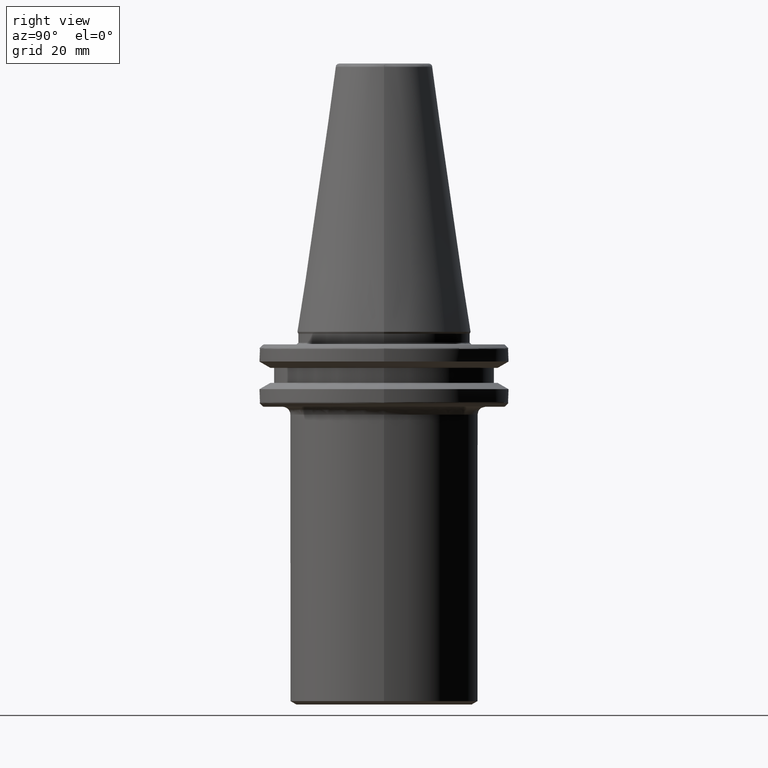
[diagram: clean part render]
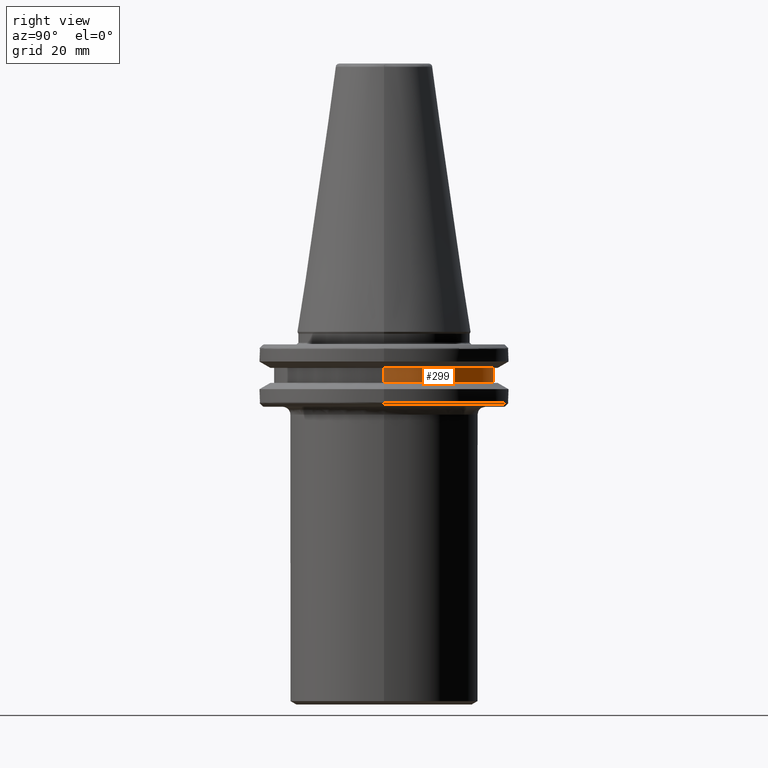
[diagram: same view with one face highlighted and labeled with its STEP entity id]
A machine part, right view. The second image highlights one B-rep face of the part: STEP entity #299.
In plain terms, the highlighted cylindrical surface (partial cylindrical patch) has radius 28 mm, axis along (0, 0, 1).
Its self-contained STEP definition (entity closure, byte-faithful):
#159 = EDGE_CURVE ( 'NONE', #2204, #325, #892, .T. ) ;
#254 = CARTESIAN_POINT ( 'NONE',  ( -28.00000000000000000, 3.429011037612589300E-015, 69.75694866325665100 ) ) ;
#261 = AXIS2_PLACEMENT_3D ( 'NONE', #3194, #739, #2222 ) ;
#299 = ADVANCED_FACE ( 'NONE', ( #1925 ), #1160, .T. ) ;
#325 = VERTEX_POINT ( 'NONE', #1921 ) ;
#460 = EDGE_CURVE ( 'NONE', #2204, #2844, #944, .T. ) ;
#655 = VECTOR ( 'NONE', #870, 1000.000000000000000 ) ;
#739 = DIRECTION ( 'NONE',  ( 0.0000000000000000000, 0.0000000000000000000, 1.000000000000000000 ) ) ;
#869 = CARTESIAN_POINT ( 'NONE',  ( 28.00000000000000000, 0.0000000000000000000, -12.99999999999999800 ) ) ;
#870 = DIRECTION ( 'NONE',  ( 0.0000000000000000000, 0.0000000000000000000, 1.000000000000000000 ) ) ;
#892 = CIRCLE ( 'NONE', #2229, 28.00000000000000000 ) ;
#905 = EDGE_LOOP ( 'NONE', ( #2120, #1048, #3012, #1237 ) ) ;
#944 = LINE ( 'NONE', #1445, #655 ) ;
#1040 = DIRECTION ( 'NONE',  ( 1.000000000000000000, 0.0000000000000000000, 0.0000000000000000000 ) ) ;
#1045 = DIRECTION ( 'NONE',  ( -0.0000000000000000000, -0.0000000000000000000, -1.000000000000000000 ) ) ;
#1047 = CARTESIAN_POINT ( 'NONE',  ( 0.0000000000000000000, 0.0000000000000000000, -9.199999999999999300 ) ) ;
#1048 = ORIENTED_EDGE ( 'NONE', *, *, #1151, .T. ) ;
#1078 = CIRCLE ( 'NONE', #1297, 28.00000000000000000 ) ;
#1151 = EDGE_CURVE ( 'NONE', #325, #2408, #2826, .T. ) ;
#1160 = CYLINDRICAL_SURFACE ( 'NONE', #261, 28.00000000000000000 ) ;
#1237 = ORIENTED_EDGE ( 'NONE', *, *, #460, .F. ) ;
#1297 = AXIS2_PLACEMENT_3D ( 'NONE', #1047, #1045, #1040 ) ;
#1445 = CARTESIAN_POINT ( 'NONE',  ( 28.00000000000000000, 0.0000000000000000000, 69.75694866325665100 ) ) ;
#1491 = DIRECTION ( 'NONE',  ( 0.0000000000000000000, 0.0000000000000000000, 1.000000000000000000 ) ) ;
#1677 = CARTESIAN_POINT ( 'NONE',  ( 28.00000000000000000, 0.0000000000000000000, -9.199999999999999300 ) ) ;
#1723 = CARTESIAN_POINT ( 'NONE',  ( 0.0000000000000000000, 0.0000000000000000000, -12.99999999999999800 ) ) ;
#1898 = EDGE_CURVE ( 'NONE', #2408, #2844, #1078, .T. ) ;
#1921 = CARTESIAN_POINT ( 'NONE',  ( -28.00000000000000000, 3.429011037612589300E-015, -12.99999999999999800 ) ) ;
#1925 = FACE_OUTER_BOUND ( 'NONE', #905, .T. ) ;
#1986 = DIRECTION ( 'NONE',  ( 1.000000000000000000, 0.0000000000000000000, 0.0000000000000000000 ) ) ;
#2056 = DIRECTION ( 'NONE',  ( 0.0000000000000000000, 0.0000000000000000000, 1.000000000000000000 ) ) ;
#2120 = ORIENTED_EDGE ( 'NONE', *, *, #159, .T. ) ;
#2204 = VERTEX_POINT ( 'NONE', #869 ) ;
#2222 = DIRECTION ( 'NONE',  ( 1.000000000000000000, 0.0000000000000000000, 0.0000000000000000000 ) ) ;
#2229 = AXIS2_PLACEMENT_3D ( 'NONE', #1723, #1491, #1986 ) ;
#2401 = VECTOR ( 'NONE', #2056, 1000.000000000000000 ) ;
#2408 = VERTEX_POINT ( 'NONE', #2698 ) ;
#2698 = CARTESIAN_POINT ( 'NONE',  ( -28.00000000000000000, 3.429011037612589300E-015, -9.199999999999999300 ) ) ;
#2826 = LINE ( 'NONE', #254, #2401 ) ;
#2844 = VERTEX_POINT ( 'NONE', #1677 ) ;
#3012 = ORIENTED_EDGE ( 'NONE', *, *, #1898, .T. ) ;
#3194 = CARTESIAN_POINT ( 'NONE',  ( 0.0000000000000000000, 0.0000000000000000000, 69.75694866325665100 ) ) ;